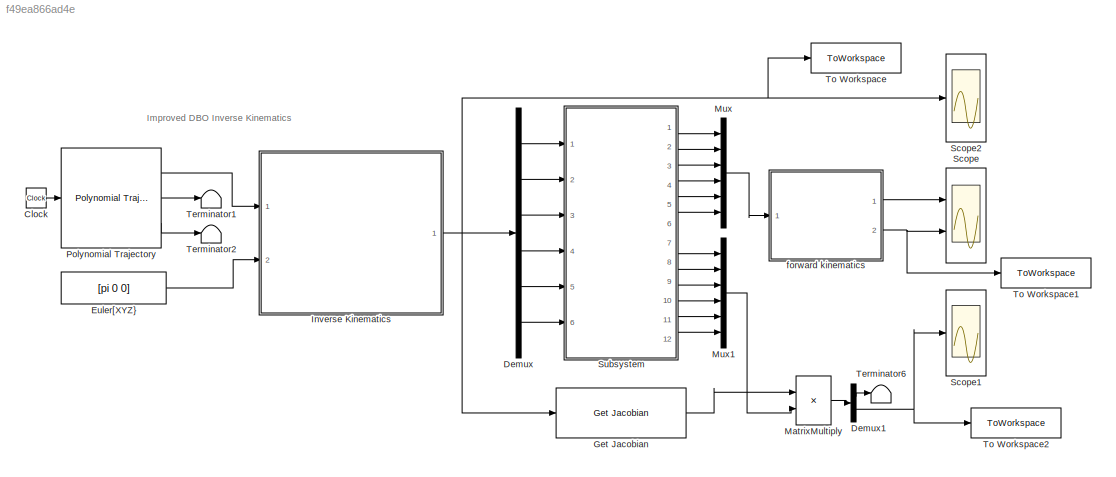
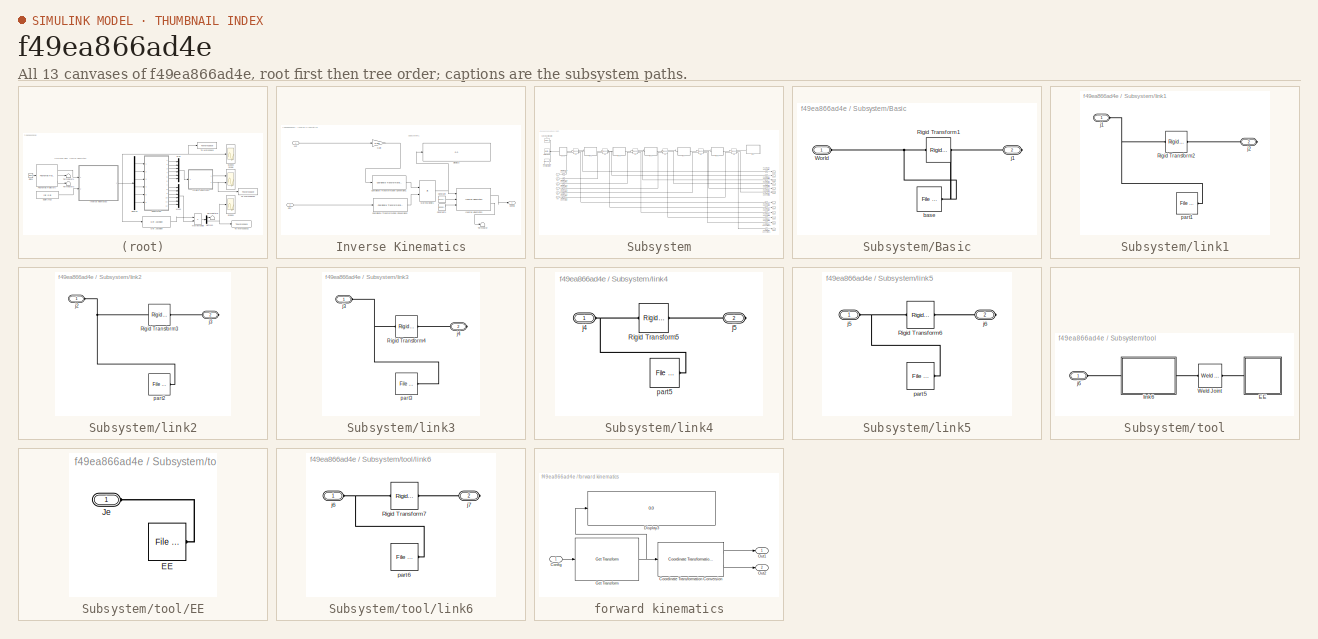
[diagram: thumbnail index - all 13 canvases of the model, root first then tree order]
MODEL slx_f49ea866ad4e
KIND model
CONFIG AbsTol = 1e-3
CONFIG EnableMultiTasking = on
CONFIG FixedStep = auto
CONFIG MaxStep = auto
CONFIG MinStep = auto
CONFIG RelTol = 1e-3
CONFIG SampleTimeConstraint = Unconstrained
CONFIG SolverName = VariableStepAuto
CONFIG StartTime = 0.0
CONFIG StopTime = 10.0
BLOCK [Clock] Clock
  Decimation = 60
BLOCK [Demux] Demux
  Outputs = 6
  Ports = [1, 6]
BLOCK [Demux] Demux1
  Outputs = 2
  Ports = [1, 2]
BLOCK [Constant] Euler[XYZ}
  Value = [pi 0 0]
BLOCK [Reference] Get Jacobian  REF=robotmaniplib/Get Jacobian
  Ports = [1, 1]
  SourceBlock = robotmaniplib/Get Jacobian
  SourceProductBaseCode = RO
  SourceType = Get Jacobian
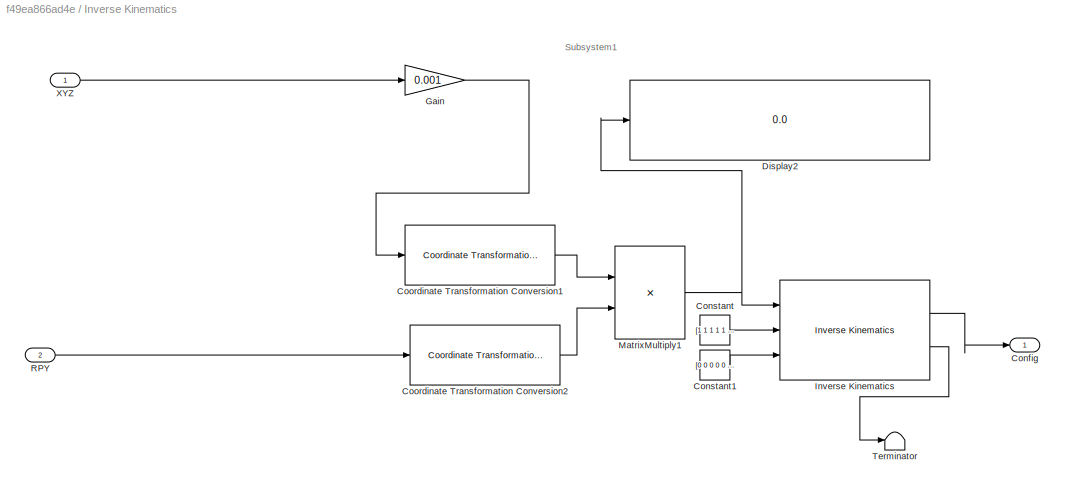
BLOCK [SubSystem] Inverse Kinematics
  Ports = [2, 1]
  RequestExecContextInheritance = off
BLOCK [Outport] Inverse Kinematics/Config
BLOCK [Constant] Inverse Kinematics/Constant
  Value = [1 1 1 1 1 1]
BLOCK [Constant] Inverse Kinematics/Constant1
  Value = [0 0 0 0 0 0]
BLOCK [Reference] Inverse Kinematics/Coordinate Transformation Conversion1  REF=robotcorelib/Coordinate Transformation Conversion
  Ports = [1, 1]
  SourceBlock = robotcorelib/Coordinate Transformation Conversion
  SourceProductBaseCode = NV,RO,RR,UV
  SourceType = robotics.slcore.internal.block.CoordinateTransformationConversion
BLOCK [Reference] Inverse Kinematics/Coordinate Transformation Conversion2  REF=robotcorelib/Coordinate Transformation Conversion
  Ports = [1, 1]
  SourceBlock = robotcorelib/Coordinate Transformation Conversion
  SourceProductBaseCode = NV,RO,RR,UV
  SourceType = robotics.slcore.internal.block.CoordinateTransformationConversion
BLOCK [Display] Inverse Kinematics/Display2
  Decimation = 1
  Ports = [1]
BLOCK [Gain] Inverse Kinematics/Gain
  Gain = 0.001
BLOCK [Reference] Inverse Kinematics/Inverse Kinematics  REF=robotmaniplib/Inverse Kinematics
  Ports = [3, 2]
  SourceBlock = robotmaniplib/Inverse Kinematics
  SourceProductBaseCode = RO
  SourceType = Inverse Kinematics
BLOCK [Product] Inverse Kinematics/MatrixMultiply1
  Multiplication = Matrix(*)
  Ports = [2, 1]
BLOCK [Inport] Inverse Kinematics/RPY
  Port = 2
BLOCK [Terminator] Inverse Kinematics/Terminator
BLOCK [Inport] Inverse Kinematics/XYZ
BLOCK [Product] MatrixMultiply
  Multiplication = Matrix(*)
  Ports = [2, 1]
BLOCK [Mux] Mux
  DisplayOption = bar
  Inputs = 6
  Ports = [6, 1]
BLOCK [Mux] Mux1
  DisplayOption = bar
  Inputs = 6
  Ports = [6, 1]
BLOCK [Reference] Polynomial Trajectory  REF=robotcorelib/Polynomial Trajectory
  Ports = [1, 3]
  SourceBlock = robotcorelib/Polynomial Trajectory
  SourceProductBaseCode = NV,RO,RR,UV
  SourceType = robotics.slcore.internal.block.PolyTrajSys
BLOCK [Scope] Scope
  Floating = off
  NumInputPorts = 2
  Ports = [2]
  ScopeSpecificationString = Simulink.scopes.TimeScopeBlockCfg('CurrentConfiguration', extmgr.ConfigurationSet(extmgr.Configuration('Core','General UI',true),extmgr.Configuration('Core','Source UI',true),extmgr.Configuration('Sources','WiredSimulink',true),extmgr.Configuration('Visuals','Time Domain',true,'SerializedDisplays',{struct('MinYLimReal','-3.92699','MaxYLimReal','3.92699','YLabelReal','','MinYLimMag','0.00000','MaxY...<+2107ch>
BLOCK [Scope] Scope1
  Floating = off
  NumInputPorts = 1
  Ports = [1]
  ScopeSpecificationString = Simulink.scopes.TimeScopeBlockCfg('CurrentConfiguration', extmgr.ConfigurationSet(extmgr.Configuration('Core','General UI',true),extmgr.Configuration('Core','Source UI',true),extmgr.Configuration('Sources','WiredSimulink',true,'DataLoggingVariableName','ScopeData1'),extmgr.Configuration('Visuals','Time Domain',true,'SerializedDisplays',{struct('MinYLimReal','-0.40413','MaxYLimReal','0.17465','YLab...<+1499ch>
BLOCK [Scope] Scope2
  Floating = off
  NumInputPorts = 1
  Ports = [1]
  ScopeSpecificationString = Simulink.scopes.TimeScopeBlockCfg('CurrentConfiguration', extmgr.ConfigurationSet(extmgr.Configuration('Core','General UI',true,'FigureColor',[1 1 1]),extmgr.Configuration('Core','Source UI',true),extmgr.Configuration('Sources','WiredSimulink',true,'DataLoggingVariableName','ScopeData1'),extmgr.Configuration('Visuals','Time Domain',true,'SerializedDisplays',{struct('MinYLimReal','-1.70294','MaxYLi...<+2726ch>
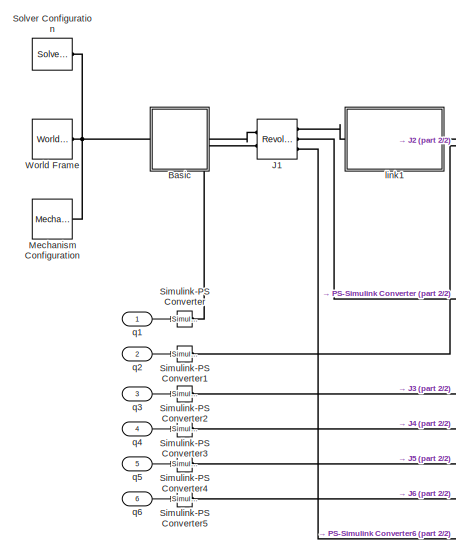
[diagram: Subsystem - part 1/2, middle left region]
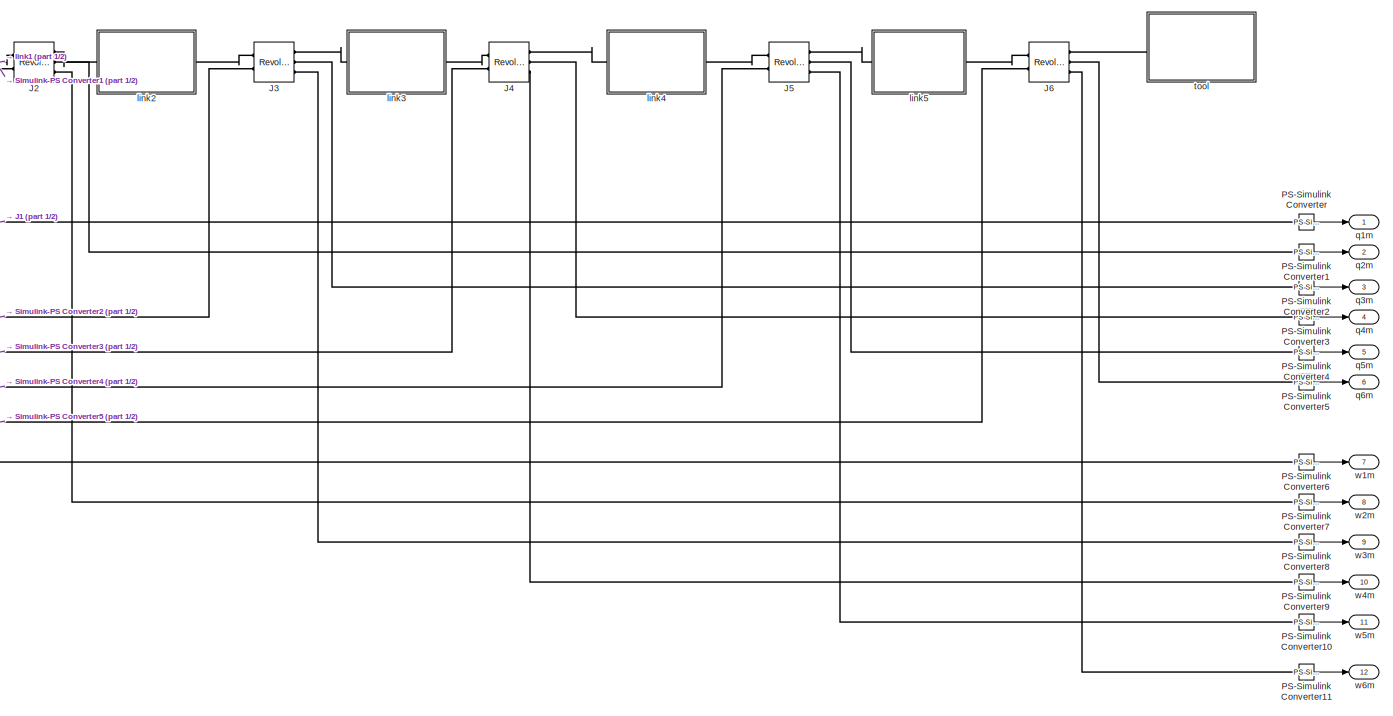
[diagram: Subsystem - part 2/2, most of the canvas]
BLOCK [SubSystem] Subsystem
  Ports = [6, 12]
  RequestExecContextInheritance = off
BLOCK [SubSystem] Subsystem/Basic
  Ports = [0, 0, 0, 0, 0, 1, 1]
  RequestExecContextInheritance = off
BLOCK [Reference] Subsystem/Basic/Rigid Transform1  REF=sm_lib/Frames and
Transforms/Rigid
Transform
  Ports = [0, 0, 0, 0, 0, 1, 1]
  SourceBlock = sm_lib/Frames and\nTransforms/Rigid\nTransform
  SourceProductBaseCode = MS
  SourceType = Rigid\nTransform
BLOCK [PMIOPort] Subsystem/Basic/World
  Side = Left
BLOCK [Reference] Subsystem/Basic/base  REF=sm_lib/Body Elements/File Solid
  Ports = [0, 0, 0, 0, 0, 0, 1]
  SourceBlock = sm_lib/Body Elements/File Solid
  SourceProductBaseCode = MS
  SourceType = File Solid
BLOCK [PMIOPort] Subsystem/Basic/j1
  Port = 2
  Side = Right
BLOCK [Reference] Subsystem/J1  REF=sm_lib/Joints/Revolute Joint
  Ports = [0, 0, 0, 0, 0, 2, 3]
  SourceBlock = sm_lib/Joints/Revolute Joint
  SourceProductBaseCode = MS
  SourceType = Revolute Joint
BLOCK [Reference] Subsystem/J2  REF=sm_lib/Joints/Revolute Joint
  Ports = [0, 0, 0, 0, 0, 2, 3]
  SourceBlock = sm_lib/Joints/Revolute Joint
  SourceProductBaseCode = MS
  SourceType = Revolute Joint
BLOCK [Reference] Subsystem/J3  REF=sm_lib/Joints/Revolute Joint
  Ports = [0, 0, 0, 0, 0, 2, 3]
  SourceBlock = sm_lib/Joints/Revolute Joint
  SourceProductBaseCode = MS
  SourceType = Revolute Joint
BLOCK [Reference] Subsystem/J4  REF=sm_lib/Joints/Revolute Joint
  Ports = [0, 0, 0, 0, 0, 2, 3]
  SourceBlock = sm_lib/Joints/Revolute Joint
  SourceProductBaseCode = MS
  SourceType = Revolute Joint
BLOCK [Reference] Subsystem/J5  REF=sm_lib/Joints/Revolute Joint
  Ports = [0, 0, 0, 0, 0, 2, 3]
  SourceBlock = sm_lib/Joints/Revolute Joint
  SourceProductBaseCode = MS
  SourceType = Revolute Joint
BLOCK [Reference] Subsystem/J6  REF=sm_lib/Joints/Revolute Joint
  Ports = [0, 0, 0, 0, 0, 2, 3]
  SourceBlock = sm_lib/Joints/Revolute Joint
  SourceProductBaseCode = MS
  SourceType = Revolute Joint
BLOCK [Reference] Subsystem/Mechanism Configuration  REF=sm_lib/Utilities/Mechanism
Configuration
  Ports = [0, 0, 0, 0, 0, 0, 1]
  SourceBlock = sm_lib/Utilities/Mechanism\nConfiguration
  SourceProductBaseCode = MS
  SourceType = Mechanism\nConfiguration
BLOCK [Reference] Subsystem/PS-Simulink Converter  REF=nesl_utility/PS-Simulink
Converter
  Ports = [0, 1, 0, 0, 0, 1]
  SourceBlock = nesl_utility/PS-Simulink\nConverter
  SourceProductBaseCode = PW,SS
  SourceType = PS-Simulink\nConverter
BLOCK [Reference] Subsystem/PS-Simulink Converter1  REF=nesl_utility/PS-Simulink
Converter
  Ports = [0, 1, 0, 0, 0, 1]
  SourceBlock = nesl_utility/PS-Simulink\nConverter
  SourceProductBaseCode = PW,SS
  SourceType = PS-Simulink\nConverter
BLOCK [Reference] Subsystem/PS-Simulink Converter10  REF=nesl_utility/PS-Simulink
Converter
  Ports = [0, 1, 0, 0, 0, 1]
  SourceBlock = nesl_utility/PS-Simulink\nConverter
  SourceProductBaseCode = PW,SS
  SourceType = PS-Simulink\nConverter
BLOCK [Reference] Subsystem/PS-Simulink Converter11  REF=nesl_utility/PS-Simulink
Converter
  Ports = [0, 1, 0, 0, 0, 1]
  SourceBlock = nesl_utility/PS-Simulink\nConverter
  SourceProductBaseCode = PW,SS
  SourceType = PS-Simulink\nConverter
BLOCK [Reference] Subsystem/PS-Simulink Converter2  REF=nesl_utility/PS-Simulink
Converter
  Ports = [0, 1, 0, 0, 0, 1]
  SourceBlock = nesl_utility/PS-Simulink\nConverter
  SourceProductBaseCode = PW,SS
  SourceType = PS-Simulink\nConverter
BLOCK [Reference] Subsystem/PS-Simulink Converter3  REF=nesl_utility/PS-Simulink
Converter
  Ports = [0, 1, 0, 0, 0, 1]
  SourceBlock = nesl_utility/PS-Simulink\nConverter
  SourceProductBaseCode = PW,SS
  SourceType = PS-Simulink\nConverter
BLOCK [Reference] Subsystem/PS-Simulink Converter4  REF=nesl_utility/PS-Simulink
Converter
  Ports = [0, 1, 0, 0, 0, 1]
  SourceBlock = nesl_utility/PS-Simulink\nConverter
  SourceProductBaseCode = PW,SS
  SourceType = PS-Simulink\nConverter
BLOCK [Reference] Subsystem/PS-Simulink Converter5  REF=nesl_utility/PS-Simulink
Converter
  Ports = [0, 1, 0, 0, 0, 1]
  SourceBlock = nesl_utility/PS-Simulink\nConverter
  SourceProductBaseCode = PW,SS
  SourceType = PS-Simulink\nConverter
BLOCK [Reference] Subsystem/PS-Simulink Converter6  REF=nesl_utility/PS-Simulink
Converter
  Ports = [0, 1, 0, 0, 0, 1]
  SourceBlock = nesl_utility/PS-Simulink\nConverter
  SourceProductBaseCode = PW,SS
  SourceType = PS-Simulink\nConverter
BLOCK [Reference] Subsystem/PS-Simulink Converter7  REF=nesl_utility/PS-Simulink
Converter
  Ports = [0, 1, 0, 0, 0, 1]
  SourceBlock = nesl_utility/PS-Simulink\nConverter
  SourceProductBaseCode = PW,SS
  SourceType = PS-Simulink\nConverter
BLOCK [Reference] Subsystem/PS-Simulink Converter8  REF=nesl_utility/PS-Simulink
Converter
  Ports = [0, 1, 0, 0, 0, 1]
  SourceBlock = nesl_utility/PS-Simulink\nConverter
  SourceProductBaseCode = PW,SS
  SourceType = PS-Simulink\nConverter
BLOCK [Reference] Subsystem/PS-Simulink Converter9  REF=nesl_utility/PS-Simulink
Converter
  Ports = [0, 1, 0, 0, 0, 1]
  SourceBlock = nesl_utility/PS-Simulink\nConverter
  SourceProductBaseCode = PW,SS
  SourceType = PS-Simulink\nConverter
BLOCK [Reference] Subsystem/Simulink-PS Converter  REF=nesl_utility/Simulink-PS
Converter
  Ports = [1, 0, 0, 0, 0, 0, 1]
  SourceBlock = nesl_utility/Simulink-PS\nConverter
  SourceProductBaseCode = PW,SS
  SourceType = Simulink-PS\nConverter
BLOCK [Reference] Subsystem/Simulink-PS Converter1  REF=nesl_utility/Simulink-PS
Converter
  Ports = [1, 0, 0, 0, 0, 0, 1]
  SourceBlock = nesl_utility/Simulink-PS\nConverter
  SourceProductBaseCode = PW,SS
  SourceType = Simulink-PS\nConverter
BLOCK [Reference] Subsystem/Simulink-PS Converter2  REF=nesl_utility/Simulink-PS
Converter
  Ports = [1, 0, 0, 0, 0, 0, 1]
  SourceBlock = nesl_utility/Simulink-PS\nConverter
  SourceProductBaseCode = PW,SS
  SourceType = Simulink-PS\nConverter
BLOCK [Reference] Subsystem/Simulink-PS Converter3  REF=nesl_utility/Simulink-PS
Converter
  Ports = [1, 0, 0, 0, 0, 0, 1]
  SourceBlock = nesl_utility/Simulink-PS\nConverter
  SourceProductBaseCode = PW,SS
  SourceType = Simulink-PS\nConverter
BLOCK [Reference] Subsystem/Simulink-PS Converter4  REF=nesl_utility/Simulink-PS
Converter
  Ports = [1, 0, 0, 0, 0, 0, 1]
  SourceBlock = nesl_utility/Simulink-PS\nConverter
  SourceProductBaseCode = PW,SS
  SourceType = Simulink-PS\nConverter
BLOCK [Reference] Subsystem/Simulink-PS Converter5  REF=nesl_utility/Simulink-PS
Converter
  Ports = [1, 0, 0, 0, 0, 0, 1]
  SourceBlock = nesl_utility/Simulink-PS\nConverter
  SourceProductBaseCode = PW,SS
  SourceType = Simulink-PS\nConverter
BLOCK [Reference] Subsystem/Solver Configuration  REF=nesl_utility/Solver
Configuration
  Ports = [0, 0, 0, 0, 0, 0, 1]
  SourceBlock = nesl_utility/Solver\nConfiguration
  SourceProductBaseCode = PW,SS
  SourceType = Solver\nConfiguration
BLOCK [Reference] Subsystem/World Frame  REF=sm_lib/Frames and
Transforms/World Frame
  Ports = [0, 0, 0, 0, 0, 0, 1]
  SourceBlock = sm_lib/Frames and\nTransforms/World Frame
  SourceProductBaseCode = MS
  SourceType = World Frame
BLOCK [SubSystem] Subsystem/link1
  Ports = [0, 0, 0, 0, 0, 1, 1]
  RequestExecContextInheritance = off
BLOCK [Reference] Subsystem/link1/Rigid Transform2  REF=sm_lib/Frames and
Transforms/Rigid
Transform
  Ports = [0, 0, 0, 0, 0, 1, 1]
  SourceBlock = sm_lib/Frames and\nTransforms/Rigid\nTransform
  SourceProductBaseCode = MS
  SourceType = Rigid\nTransform
BLOCK [PMIOPort] Subsystem/link1/j1
  Side = Left
BLOCK [PMIOPort] Subsystem/link1/j2
  Port = 2
  Side = Right
BLOCK [Reference] Subsystem/link1/part1  REF=sm_lib/Body Elements/File Solid
  Ports = [0, 0, 0, 0, 0, 0, 1]
  SourceBlock = sm_lib/Body Elements/File Solid
  SourceProductBaseCode = MS
  SourceType = File Solid
BLOCK [SubSystem] Subsystem/link2
  Ports = [0, 0, 0, 0, 0, 1, 1]
  RequestExecContextInheritance = off
BLOCK [Reference] Subsystem/link2/Rigid Transform3  REF=sm_lib/Frames and
Transforms/Rigid
Transform
  Ports = [0, 0, 0, 0, 0, 1, 1]
  SourceBlock = sm_lib/Frames and\nTransforms/Rigid\nTransform
  SourceProductBaseCode = MS
  SourceType = Rigid\nTransform
BLOCK [PMIOPort] Subsystem/link2/j2
  Side = Left
BLOCK [PMIOPort] Subsystem/link2/j3
  Port = 2
  Side = Right
BLOCK [Reference] Subsystem/link2/part2  REF=sm_lib/Body Elements/File Solid
  Ports = [0, 0, 0, 0, 0, 0, 1]
  SourceBlock = sm_lib/Body Elements/File Solid
  SourceProductBaseCode = MS
  SourceType = File Solid
BLOCK [SubSystem] Subsystem/link3
  Ports = [0, 0, 0, 0, 0, 1, 1]
  RequestExecContextInheritance = off
BLOCK [Reference] Subsystem/link3/Rigid Transform4  REF=sm_lib/Frames and
Transforms/Rigid
Transform
  Ports = [0, 0, 0, 0, 0, 1, 1]
  SourceBlock = sm_lib/Frames and\nTransforms/Rigid\nTransform
  SourceProductBaseCode = MS
  SourceType = Rigid\nTransform
BLOCK [PMIOPort] Subsystem/link3/j3
  Side = Left
BLOCK [PMIOPort] Subsystem/link3/j4
  Port = 2
  Side = Right
BLOCK [Reference] Subsystem/link3/part3  REF=sm_lib/Body Elements/File Solid
  Ports = [0, 0, 0, 0, 0, 0, 1]
  SourceBlock = sm_lib/Body Elements/File Solid
  SourceProductBaseCode = MS
  SourceType = File Solid
BLOCK [SubSystem] Subsystem/link4
  Ports = [0, 0, 0, 0, 0, 1, 1]
  RequestExecContextInheritance = off
BLOCK [Reference] Subsystem/link4/Rigid Transform5  REF=sm_lib/Frames and
Transforms/Rigid
Transform
  Ports = [0, 0, 0, 0, 0, 1, 1]
  SourceBlock = sm_lib/Frames and\nTransforms/Rigid\nTransform
  SourceProductBaseCode = MS
  SourceType = Rigid\nTransform
BLOCK [PMIOPort] Subsystem/link4/j4
  Side = Left
BLOCK [PMIOPort] Subsystem/link4/j5
  Port = 2
  Side = Right
BLOCK [Reference] Subsystem/link4/part5  REF=sm_lib/Body Elements/File Solid
  Ports = [0, 0, 0, 0, 0, 0, 1]
  SourceBlock = sm_lib/Body Elements/File Solid
  SourceProductBaseCode = MS
  SourceType = File Solid
BLOCK [SubSystem] Subsystem/link5
  Ports = [0, 0, 0, 0, 0, 1, 1]
  RequestExecContextInheritance = off
BLOCK [Reference] Subsystem/link5/Rigid Transform6  REF=sm_lib/Frames and
Transforms/Rigid
Transform
  Ports = [0, 0, 0, 0, 0, 1, 1]
  SourceBlock = sm_lib/Frames and\nTransforms/Rigid\nTransform
  SourceProductBaseCode = MS
  SourceType = Rigid\nTransform
BLOCK [PMIOPort] Subsystem/link5/j5
  Side = Left
BLOCK [PMIOPort] Subsystem/link5/j6
  Port = 2
  Side = Right
BLOCK [Reference] Subsystem/link5/part5  REF=sm_lib/Body Elements/File Solid
  Ports = [0, 0, 0, 0, 0, 0, 1]
  SourceBlock = sm_lib/Body Elements/File Solid
  SourceProductBaseCode = MS
  SourceType = File Solid
BLOCK [Inport] Subsystem/q1
BLOCK [Outport] Subsystem/q1m
BLOCK [Inport] Subsystem/q2
  Port = 2
BLOCK [Outport] Subsystem/q2m
  Port = 2
BLOCK [Inport] Subsystem/q3
  Port = 3
BLOCK [Outport] Subsystem/q3m
  Port = 3
BLOCK [Inport] Subsystem/q4
  Port = 4
BLOCK [Outport] Subsystem/q4m
  Port = 4
BLOCK [Inport] Subsystem/q5
  Port = 5
BLOCK [Outport] Subsystem/q5m
  Port = 5
BLOCK [Inport] Subsystem/q6
  Port = 6
BLOCK [Outport] Subsystem/q6m
  Port = 6
BLOCK [SubSystem] Subsystem/tool
  Ports = [0, 0, 0, 0, 0, 1]
  RequestExecContextInheritance = off
BLOCK [SubSystem] Subsystem/tool/EE
  Ports = [0, 0, 0, 0, 0, 1]
  RequestExecContextInheritance = off
BLOCK [Reference] Subsystem/tool/EE/EE  REF=sm_lib/Body Elements/File Solid
  Ports = [0, 0, 0, 0, 0, 0, 1]
  SourceBlock = sm_lib/Body Elements/File Solid
  SourceProductBaseCode = MS
  SourceType = File Solid
BLOCK [PMIOPort] Subsystem/tool/EE/Je
  Side = Left
BLOCK [Reference] Subsystem/tool/Weld Joint  REF=sm_lib/Joints/Weld Joint
  Ports = [0, 0, 0, 0, 0, 1, 1]
  SourceBlock = sm_lib/Joints/Weld Joint
  SourceProductBaseCode = MS
  SourceType = Weld Joint
BLOCK [PMIOPort] Subsystem/tool/j6
  Side = Left
BLOCK [SubSystem] Subsystem/tool/link6
  Ports = [0, 0, 0, 0, 0, 1, 1]
  RequestExecContextInheritance = off
BLOCK [Reference] Subsystem/tool/link6/Rigid Transform7  REF=sm_lib/Frames and
Transforms/Rigid
Transform
  Ports = [0, 0, 0, 0, 0, 1, 1]
  SourceBlock = sm_lib/Frames and\nTransforms/Rigid\nTransform
  SourceProductBaseCode = MS
  SourceType = Rigid\nTransform
BLOCK [PMIOPort] Subsystem/tool/link6/j6
  Side = Left
BLOCK [PMIOPort] Subsystem/tool/link6/j7
  Port = 2
  Side = Right
BLOCK [Reference] Subsystem/tool/link6/part6  REF=sm_lib/Body Elements/File Solid
  Ports = [0, 0, 0, 0, 0, 0, 1]
  SourceBlock = sm_lib/Body Elements/File Solid
  SourceProductBaseCode = MS
  SourceType = File Solid
BLOCK [Outport] Subsystem/w1m
  Port = 7
BLOCK [Outport] Subsystem/w2m
  Port = 8
BLOCK [Outport] Subsystem/w3m
  Port = 9
BLOCK [Outport] Subsystem/w4m
  Port = 10
BLOCK [Outport] Subsystem/w5m
  Port = 11
BLOCK [Outport] Subsystem/w6m
  Port = 12
BLOCK [Terminator] Terminator1
BLOCK [Terminator] Terminator2
BLOCK [Terminator] Terminator6
BLOCK [ToWorkspace] To Workspace
  FixptAsFi = on
  MaxDataPoints = inf
  Ports = [1]
  SampleTime = -1
  VariableName = simout
BLOCK [ToWorkspace] To Workspace1
  FixptAsFi = on
  MaxDataPoints = inf
  Ports = [1]
  SampleTime = -1
  VariableName = simout1
BLOCK [ToWorkspace] To Workspace2
  FixptAsFi = on
  MaxDataPoints = inf
  Ports = [1]
  SampleTime = -1
  VariableName = simout2
BLOCK [SubSystem] forward kinematics
  Ports = [1, 2]
  RequestExecContextInheritance = off
BLOCK [Inport] forward kinematics/Config
BLOCK [Reference] forward kinematics/Coordinate Transformation Conversion  REF=robotcorelib/Coordinate Transformation Conversion
  Ports = [1, 2]
  SourceBlock = robotcorelib/Coordinate Transformation Conversion
  SourceProductBaseCode = NV,RO,RR,UV
  SourceType = robotics.slcore.internal.block.CoordinateTransformationConversion
BLOCK [Display] forward kinematics/Display3
  Decimation = 1
  Ports = [1]
BLOCK [Reference] forward kinematics/Get Transform  REF=robotmaniplib/Get Transform
  Ports = [1, 1]
  SourceBlock = robotmaniplib/Get Transform
  SourceProductBaseCode = RO
  SourceType = Get Transform
BLOCK [Outport] forward kinematics/Out1
BLOCK [Outport] forward kinematics/Out2
  Port = 2
ANNOTATION (root): Improved DBO Inverse Kinematics
ANNOTATION Inverse Kinematics: Subsystem1
LINE Clock:1 -> Polynomial Trajectory:1
LINE Demux1:1 -> Terminator6:1
NET Demux1:2 -> Scope1:1, To Workspace2:1
LINE Demux:1 -> Subsystem:1
LINE Demux:2 -> Subsystem:2
LINE Demux:3 -> Subsystem:3
LINE Demux:4 -> Subsystem:4
LINE Demux:5 -> Subsystem:5
LINE Demux:6 -> Subsystem:6
LINE Euler[XYZ}:1 -> Inverse Kinematics:2
LINE Get Jacobian:1 -> MatrixMultiply:1
LINE Inverse Kinematics/Constant1:1 -> Inverse Kinematics/Inverse Kinematics:3
LINE Inverse Kinematics/Constant:1 -> Inverse Kinematics/Inverse Kinematics:2
LINE Inverse Kinematics/Coordinate Transformation Conversion1:1 -> Inverse Kinematics/MatrixMultiply1:1
LINE Inverse Kinematics/Coordinate Transformation Conversion2:1 -> Inverse Kinematics/MatrixMultiply1:2
LINE Inverse Kinematics/Gain:1 -> Inverse Kinematics/Coordinate Transformation Conversion1:1
LINE Inverse Kinematics/Inverse Kinematics:1 -> Inverse Kinematics/Config:1
LINE Inverse Kinematics/Inverse Kinematics:2 -> Inverse Kinematics/Terminator:1
NET Inverse Kinematics/MatrixMultiply1:1 -> Inverse Kinematics/Display2:1, Inverse Kinematics/Inverse Kinematics:1
LINE Inverse Kinematics/RPY:1 -> Inverse Kinematics/Coordinate Transformation Conversion2:1
LINE Inverse Kinematics/XYZ:1 -> Inverse Kinematics/Gain:1
NET Inverse Kinematics:1 -> Demux:1, Get Jacobian:1, Scope2:1, To Workspace:1
LINE MatrixMultiply:1 -> Demux1:1
LINE Mux1:1 -> MatrixMultiply:2
LINE Mux:1 -> forward kinematics:1
LINE Polynomial Trajectory:1 -> Inverse Kinematics:1
LINE Polynomial Trajectory:2 -> Terminator1:1
LINE Polynomial Trajectory:3 -> Terminator2:1
LINE Subsystem/PS-Simulink Converter10:1 -> Subsystem/w5m:1
LINE Subsystem/PS-Simulink Converter11:1 -> Subsystem/w6m:1
LINE Subsystem/PS-Simulink Converter1:1 -> Subsystem/q2m:1
LINE Subsystem/PS-Simulink Converter2:1 -> Subsystem/q3m:1
LINE Subsystem/PS-Simulink Converter3:1 -> Subsystem/q4m:1
LINE Subsystem/PS-Simulink Converter4:1 -> Subsystem/q5m:1
LINE Subsystem/PS-Simulink Converter5:1 -> Subsystem/q6m:1
LINE Subsystem/PS-Simulink Converter6:1 -> Subsystem/w1m:1
LINE Subsystem/PS-Simulink Converter7:1 -> Subsystem/w2m:1
LINE Subsystem/PS-Simulink Converter8:1 -> Subsystem/w3m:1
LINE Subsystem/PS-Simulink Converter9:1 -> Subsystem/w4m:1
LINE Subsystem/PS-Simulink Converter:1 -> Subsystem/q1m:1
LINE Subsystem/q1:1 -> Subsystem/Simulink-PS Converter:1
LINE Subsystem/q2:1 -> Subsystem/Simulink-PS Converter1:1
LINE Subsystem/q3:1 -> Subsystem/Simulink-PS Converter2:1
LINE Subsystem/q4:1 -> Subsystem/Simulink-PS Converter3:1
LINE Subsystem/q5:1 -> Subsystem/Simulink-PS Converter4:1
LINE Subsystem/q6:1 -> Subsystem/Simulink-PS Converter5:1
LINE Subsystem:1 -> Mux:1
LINE Subsystem:10 -> Mux1:4
LINE Subsystem:11 -> Mux1:5
LINE Subsystem:12 -> Mux1:6
LINE Subsystem:2 -> Mux:2
LINE Subsystem:3 -> Mux:3
LINE Subsystem:4 -> Mux:4
LINE Subsystem:5 -> Mux:5
LINE Subsystem:6 -> Mux:6
LINE Subsystem:7 -> Mux1:1
LINE Subsystem:8 -> Mux1:2
LINE Subsystem:9 -> Mux1:3
LINE forward kinematics/Config:1 -> forward kinematics/Get Transform:1
LINE forward kinematics/Coordinate Transformation Conversion:1 -> forward kinematics/Out1:1
LINE forward kinematics/Coordinate Transformation Conversion:2 -> forward kinematics/Out2:1
NET forward kinematics/Get Transform:1 -> forward kinematics/Coordinate Transformation Conversion:1, forward kinematics/Display3:1
LINE forward kinematics:1 -> Scope:1
NET forward kinematics:2 -> Scope:2, To Workspace1:1
PNET net1: Subsystem/Basic/Rigid Transform1:LConn1 -- Subsystem/Basic/World:RConn1 -- Subsystem/Basic/base:RConn1
PLINE Subsystem/Basic/Rigid Transform1:RConn1 -- Subsystem/Basic/j1:RConn1
PNET net2: Subsystem/Basic:LConn1 -- Subsystem/Mechanism Configuration:RConn1 -- Subsystem/Solver Configuration:RConn1 -- Subsystem/World Frame:RConn1
PLINE Subsystem/Basic:RConn1 -- Subsystem/J1:LConn1
PLINE Subsystem/J1:LConn2 -- Subsystem/Simulink-PS Converter:RConn1
PLINE Subsystem/J1:RConn1 -- Subsystem/link1:LConn1
PLINE Subsystem/J1:RConn2 -- Subsystem/PS-Simulink Converter:LConn1
PLINE Subsystem/J1:RConn3 -- Subsystem/PS-Simulink Converter6:LConn1
PLINE Subsystem/J2:LConn1 -- Subsystem/link1:RConn1
PLINE Subsystem/J2:LConn2 -- Subsystem/Simulink-PS Converter1:RConn1
PLINE Subsystem/J2:RConn1 -- Subsystem/link2:LConn1
PLINE Subsystem/J2:RConn2 -- Subsystem/PS-Simulink Converter1:LConn1
PLINE Subsystem/J2:RConn3 -- Subsystem/PS-Simulink Converter7:LConn1
PLINE Subsystem/J3:LConn1 -- Subsystem/link2:RConn1
PLINE Subsystem/J3:LConn2 -- Subsystem/Simulink-PS Converter2:RConn1
PLINE Subsystem/J3:RConn1 -- Subsystem/link3:LConn1
PLINE Subsystem/J3:RConn2 -- Subsystem/PS-Simulink Converter2:LConn1
PLINE Subsystem/J3:RConn3 -- Subsystem/PS-Simulink Converter8:LConn1
PLINE Subsystem/J4:LConn1 -- Subsystem/link3:RConn1
PLINE Subsystem/J4:LConn2 -- Subsystem/Simulink-PS Converter3:RConn1
PLINE Subsystem/J4:RConn1 -- Subsystem/link4:LConn1
PLINE Subsystem/J4:RConn2 -- Subsystem/PS-Simulink Converter3:LConn1
PLINE Subsystem/J4:RConn3 -- Subsystem/PS-Simulink Converter9:LConn1
PLINE Subsystem/J5:LConn1 -- Subsystem/link4:RConn1
PLINE Subsystem/J5:LConn2 -- Subsystem/Simulink-PS Converter4:RConn1
PLINE Subsystem/J5:RConn1 -- Subsystem/link5:LConn1
PLINE Subsystem/J5:RConn2 -- Subsystem/PS-Simulink Converter4:LConn1
PLINE Subsystem/J5:RConn3 -- Subsystem/PS-Simulink Converter10:LConn1
PLINE Subsystem/J6:LConn1 -- Subsystem/link5:RConn1
PLINE Subsystem/J6:LConn2 -- Subsystem/Simulink-PS Converter5:RConn1
PLINE Subsystem/J6:RConn1 -- Subsystem/tool:LConn1
PLINE Subsystem/J6:RConn2 -- Subsystem/PS-Simulink Converter5:LConn1
PLINE Subsystem/J6:RConn3 -- Subsystem/PS-Simulink Converter11:LConn1
PNET net3: Subsystem/link1/Rigid Transform2:LConn1 -- Subsystem/link1/j1:RConn1 -- Subsystem/link1/part1:RConn1
PLINE Subsystem/link1/Rigid Transform2:RConn1 -- Subsystem/link1/j2:RConn1
PNET net4: Subsystem/link2/Rigid Transform3:LConn1 -- Subsystem/link2/j2:RConn1 -- Subsystem/link2/part2:RConn1
PLINE Subsystem/link2/Rigid Transform3:RConn1 -- Subsystem/link2/j3:RConn1
PNET net5: Subsystem/link3/Rigid Transform4:LConn1 -- Subsystem/link3/j3:RConn1 -- Subsystem/link3/part3:RConn1
PLINE Subsystem/link3/Rigid Transform4:RConn1 -- Subsystem/link3/j4:RConn1
PNET net6: Subsystem/link4/Rigid Transform5:LConn1 -- Subsystem/link4/j4:RConn1 -- Subsystem/link4/part5:RConn1
PLINE Subsystem/link4/Rigid Transform5:RConn1 -- Subsystem/link4/j5:RConn1
PNET net7: Subsystem/link5/Rigid Transform6:LConn1 -- Subsystem/link5/j5:RConn1 -- Subsystem/link5/part5:RConn1
PLINE Subsystem/link5/Rigid Transform6:RConn1 -- Subsystem/link5/j6:RConn1
PLINE Subsystem/tool/EE/EE:RConn1 -- Subsystem/tool/EE/Je:RConn1
PLINE Subsystem/tool/EE:LConn1 -- Subsystem/tool/Weld Joint:RConn1
PLINE Subsystem/tool/Weld Joint:LConn1 -- Subsystem/tool/link6:RConn1
PLINE Subsystem/tool/j6:RConn1 -- Subsystem/tool/link6:LConn1
PNET net8: Subsystem/tool/link6/Rigid Transform7:LConn1 -- Subsystem/tool/link6/j6:RConn1 -- Subsystem/tool/link6/part6:RConn1
PLINE Subsystem/tool/link6/Rigid Transform7:RConn1 -- Subsystem/tool/link6/j7:RConn1
note: NET lines group one-source signal fan-out (src -> all destinations, sorted); 1:1 wires keep LINE; PNET lines group multi-terminal physical nets as a canonical sorted terminal list (undirected conserving connections); 2-terminal nets keep the pairwise PLINE form
